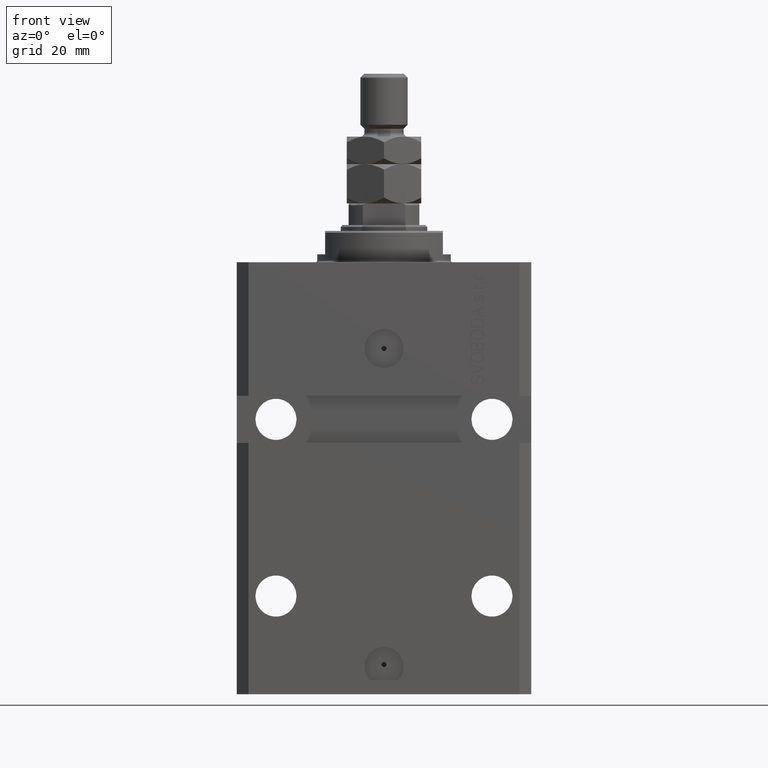
[diagram: clean part render]
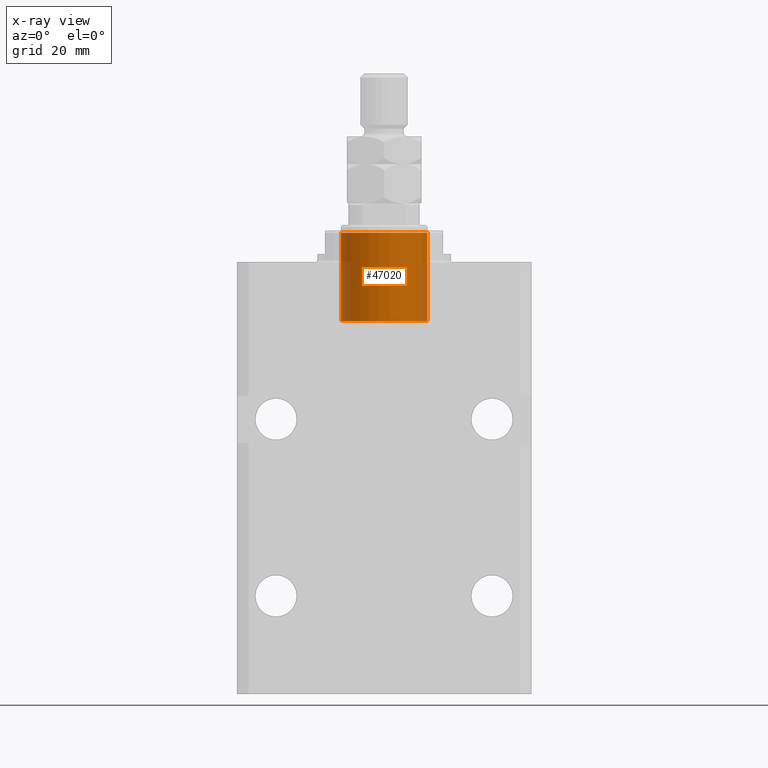
[diagram: x-ray — body ghosted, one internal face saturated and labeled with its STEP entity id]
A machine part, front view, then the same camera in x-ray: the body is ghosted and one INTERNAL B-rep face — a face not visible from any outside direction — is saturated and labeled: STEP entity #47020.
In plain terms, the highlighted cylindrical surface (partial cylindrical patch) has radius 11 mm, axis along (0, -0, 1).
Its self-contained STEP definition (entity closure, byte-faithful):
#3833 = CYLINDRICAL_SURFACE ( 'NONE', #46009, 11.00000000000000000 ) ;
#5941 = AXIS2_PLACEMENT_3D ( 'NONE', #48084, #17326, #25586 ) ;
#6418 = CARTESIAN_POINT ( 'NONE',  ( 11.00000000000000000, 1.347111479062088405E-15, 15.00000000000000000 ) ) ;
#7506 = DIRECTION ( 'NONE',  ( -0.000000000000000000, -0.000000000000000000, -1.000000000000000000 ) ) ;
#7827 = DIRECTION ( 'NONE',  ( -0.000000000000000000, -0.000000000000000000, -1.000000000000000000 ) ) ;
#9255 = ORIENTED_EDGE ( 'NONE', *, *, #14945, .T. ) ;
#9591 = ORIENTED_EDGE ( 'NONE', *, *, #45559, .F. ) ;
#11980 = LINE ( 'NONE', #26534, #36131 ) ;
#13856 = VERTEX_POINT ( 'NONE', #47056 ) ;
#14945 = EDGE_CURVE ( 'NONE', #26996, #28963, #11980, .T. ) ;
#15339 = EDGE_LOOP ( 'NONE', ( #47896, #9255, #25615, #9591 ) ) ;
#15416 = CIRCLE ( 'NONE', #5941, 11.00000000000000000 ) ;
#15772 = CARTESIAN_POINT ( 'NONE',  ( 0.000000000000000000, 0.000000000000000000, -7.500000000000000000 ) ) ;
#17326 = DIRECTION ( 'NONE',  ( 0.000000000000000000, 0.000000000000000000, -1.000000000000000000 ) ) ;
#19016 = CARTESIAN_POINT ( 'NONE',  ( 11.00000000000000000, 1.347111479062088405E-15, -7.500000000000000000 ) ) ;
#19979 = AXIS2_PLACEMENT_3D ( 'NONE', #15772, #27043, #33652 ) ;
#22487 = EDGE_CURVE ( 'NONE', #28963, #13856, #43893, .T. ) ;
#25586 = DIRECTION ( 'NONE',  ( -1.000000000000000000, 0.000000000000000000, 0.000000000000000000 ) ) ;
#25615 = ORIENTED_EDGE ( 'NONE', *, *, #22487, .T. ) ;
#26534 = CARTESIAN_POINT ( 'NONE',  ( 11.00000000000000000, 1.347111479062088405E-15, 15.00000000000000000 ) ) ;
#26996 = VERTEX_POINT ( 'NONE', #6418 ) ;
#27043 = DIRECTION ( 'NONE',  ( 0.000000000000000000, 0.000000000000000000, -1.000000000000000000 ) ) ;
#27604 = DIRECTION ( 'NONE',  ( -1.000000000000000000, 0.000000000000000000, 0.000000000000000000 ) ) ;
#28963 = VERTEX_POINT ( 'NONE', #19016 ) ;
#29763 = LINE ( 'NONE', #37009, #45973 ) ;
#29967 = CARTESIAN_POINT ( 'NONE',  ( -11.00000000000000000, 0.000000000000000000, 15.00000000000000000 ) ) ;
#31367 = FACE_OUTER_BOUND ( 'NONE', #15339, .T. ) ;
#33512 = DIRECTION ( 'NONE',  ( -0.000000000000000000, -0.000000000000000000, -1.000000000000000000 ) ) ;
#33652 = DIRECTION ( 'NONE',  ( -1.000000000000000000, 0.000000000000000000, 0.000000000000000000 ) ) ;
#36131 = VECTOR ( 'NONE', #7506, 1000.000000000000000 ) ;
#36319 = EDGE_CURVE ( 'NONE', #26996, #48735, #15416, .T. ) ;
#37009 = CARTESIAN_POINT ( 'NONE',  ( -11.00000000000000000, 0.000000000000000000, 15.00000000000000000 ) ) ;
#38350 = CARTESIAN_POINT ( 'NONE',  ( 0.000000000000000000, 0.000000000000000000, 15.00000000000000000 ) ) ;
#43893 = CIRCLE ( 'NONE', #19979, 11.00000000000000000 ) ;
#45559 = EDGE_CURVE ( 'NONE', #48735, #13856, #29763, .T. ) ;
#45973 = VECTOR ( 'NONE', #33512, 1000.000000000000000 ) ;
#46009 = AXIS2_PLACEMENT_3D ( 'NONE', #38350, #7827, #27604 ) ;
#47020 = ADVANCED_FACE ( 'NONE', ( #31367 ), #3833, .F. ) ;
#47056 = CARTESIAN_POINT ( 'NONE',  ( -11.00000000000000000, 0.000000000000000000, -7.500000000000000000 ) ) ;
#47896 = ORIENTED_EDGE ( 'NONE', *, *, #36319, .F. ) ;
#48084 = CARTESIAN_POINT ( 'NONE',  ( 0.000000000000000000, 0.000000000000000000, 15.00000000000000000 ) ) ;
#48735 = VERTEX_POINT ( 'NONE', #29967 ) ;